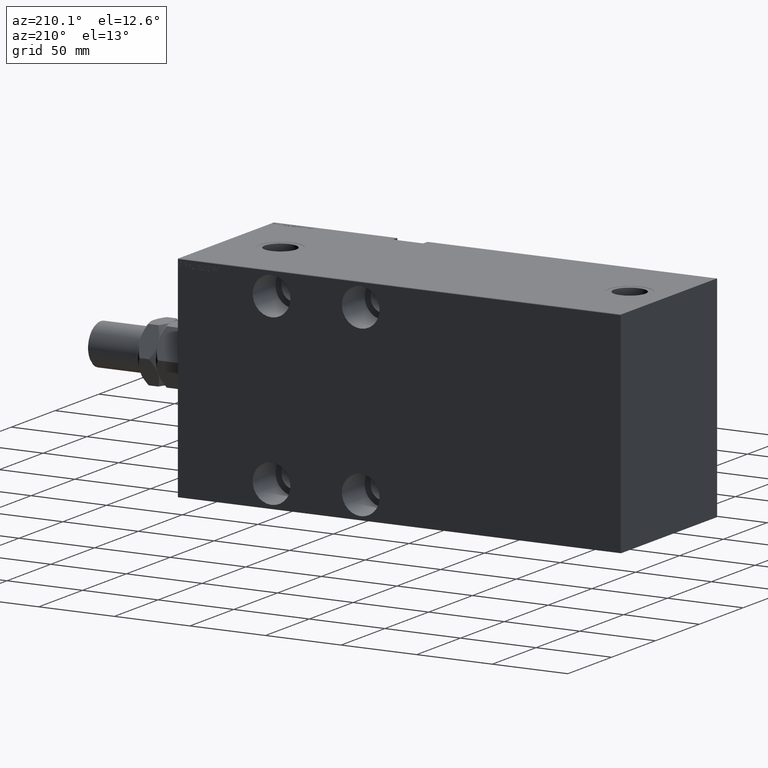
[diagram: clean part render]
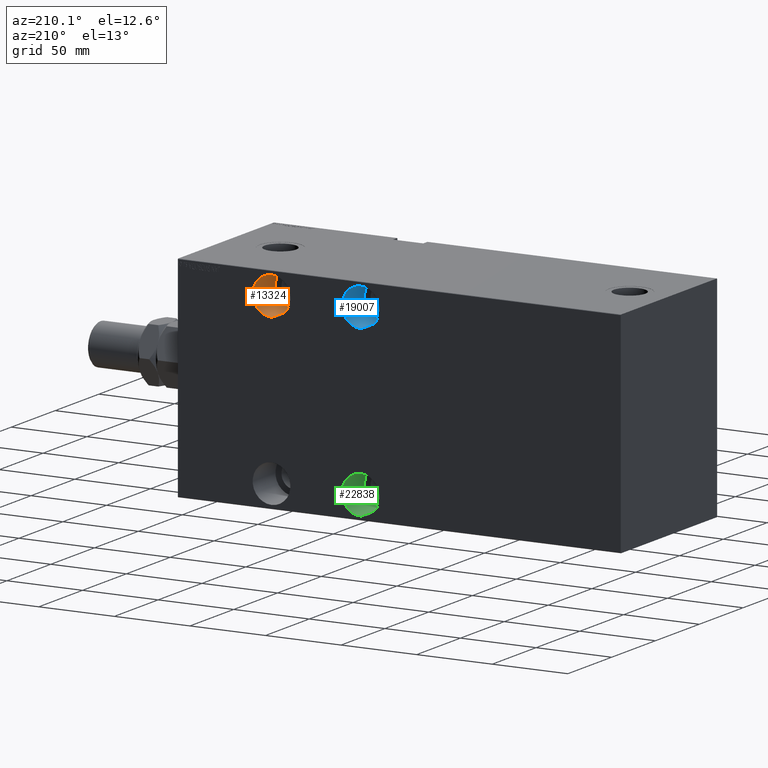
[diagram: same view with three faces highlighted in distinct colors, each labeled with its STEP entity id]
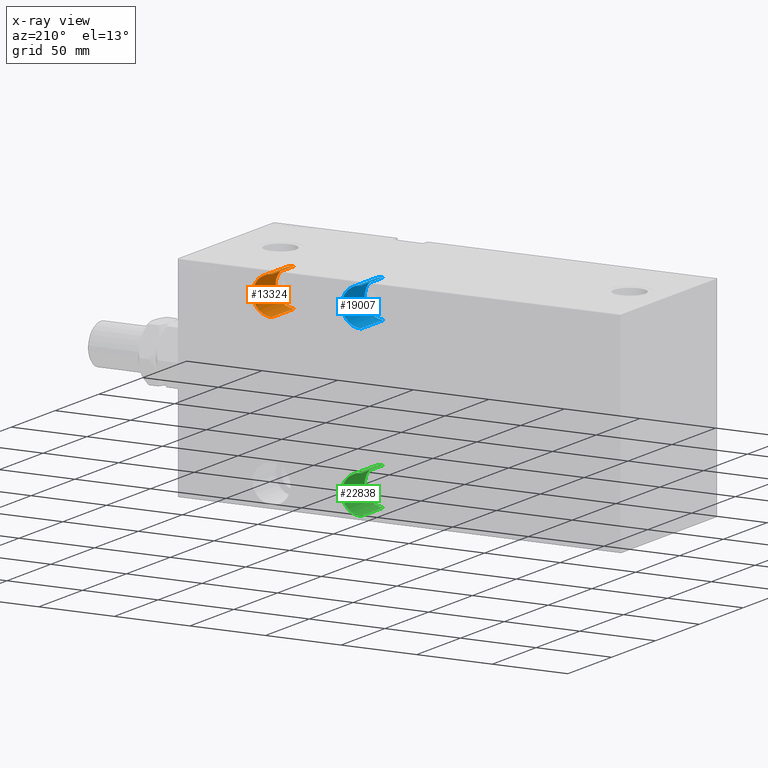
[diagram: x-ray of the same camera — body ghosted, the three highlighted faces saturated]
A machine part, auxiliary view with three faces highlighted in distinct colors.
The next image is the same camera in x-ray (body ghosted, the three faces saturated) — at least one of them is partly hidden behind the body in this view.
Their STEP definitions:

[orange] entity #13324 — the highlighted cylindrical surface (edge-blend (fillet) strip) has radius 12.5 mm, axis along (-0, 1, 0).
#470 = AXIS2_PLACEMENT_3D ( 'NONE', #31574, #34827, #42491 ) ;
#2971 = VERTEX_POINT ( 'NONE', #18669 ) ;
#4683 = ORIENTED_EDGE ( 'NONE', *, *, #36624, .F. ) ;
#5043 = VERTEX_POINT ( 'NONE', #12454 ) ;
#5191 = DIRECTION ( 'NONE',  ( -0.000000000000000000, -1.000000000000000000, -0.000000000000000000 ) ) ;
#5789 = ORIENTED_EDGE ( 'NONE', *, *, #35254, .T. ) ;
#6509 = DIRECTION ( 'NONE',  ( -0.000000000000000000, -1.000000000000000000, -0.000000000000000000 ) ) ;
#8818 = DIRECTION ( 'NONE',  ( 0.000000000000000000, -1.000000000000000000, 0.000000000000000000 ) ) ;
#11498 = VERTEX_POINT ( 'NONE', #43102 ) ;
#11910 = ORIENTED_EDGE ( 'NONE', *, *, #24061, .F. ) ;
#12454 = CARTESIAN_POINT ( 'NONE',  ( 62.00000000000001421, -28.99999999999999289, 42.50000000000000711 ) ) ;
#12504 = AXIS2_PLACEMENT_3D ( 'NONE', #44181, #8818, #16265 ) ;
#12857 = LINE ( 'NONE', #16115, #18529 ) ;
#13324 = ADVANCED_FACE ( 'NONE', ( #44595 ), #45051, .F. ) ;
#16115 = CARTESIAN_POINT ( 'NONE',  ( 62.00000000000001421, -28.99999999999999289, 67.50000000000001421 ) ) ;
#16265 = DIRECTION ( 'NONE',  ( 0.000000000000000000, 0.000000000000000000, -1.000000000000000000 ) ) ;
#17673 = CARTESIAN_POINT ( 'NONE',  ( 62.00000000000001421, -28.99999999999999289, 42.50000000000000711 ) ) ;
#18529 = VECTOR ( 'NONE', #5191, 1000.000000000000000 ) ;
#18669 = CARTESIAN_POINT ( 'NONE',  ( 62.00000000000001421, -28.99999999999999289, 67.50000000000001421 ) ) ;
#19884 = VERTEX_POINT ( 'NONE', #44073 ) ;
#21454 = CIRCLE ( 'NONE', #12504, 12.50000000000000355 ) ;
#24061 = EDGE_CURVE ( 'NONE', #2971, #5043, #35415, .T. ) ;
#25089 = EDGE_LOOP ( 'NONE', ( #11910, #5789, #35195, #4683 ) ) ;
#26734 = VECTOR ( 'NONE', #6509, 1000.000000000000000 ) ;
#29223 = EDGE_CURVE ( 'NONE', #19884, #11498, #21454, .T. ) ;
#31117 = CARTESIAN_POINT ( 'NONE',  ( 62.00000000000001421, -28.99999999999999289, 55.00000000000001421 ) ) ;
#31574 = CARTESIAN_POINT ( 'NONE',  ( 62.00000000000001421, -28.99999999999999289, 55.00000000000001421 ) ) ;
#31662 = LINE ( 'NONE', #17673, #26734 ) ;
#34827 = DIRECTION ( 'NONE',  ( 0.000000000000000000, -1.000000000000000000, 0.000000000000000000 ) ) ;
#35195 = ORIENTED_EDGE ( 'NONE', *, *, #29223, .T. ) ;
#35254 = EDGE_CURVE ( 'NONE', #2971, #19884, #12857, .T. ) ;
#35415 = CIRCLE ( 'NONE', #470, 12.50000000000000355 ) ;
#36624 = EDGE_CURVE ( 'NONE', #5043, #11498, #31662, .T. ) ;
#41107 = DIRECTION ( 'NONE',  ( 0.000000000000000000, 0.000000000000000000, -1.000000000000000000 ) ) ;
#41577 = DIRECTION ( 'NONE',  ( -0.000000000000000000, -1.000000000000000000, -0.000000000000000000 ) ) ;
#42491 = DIRECTION ( 'NONE',  ( 0.000000000000000000, 0.000000000000000000, -1.000000000000000000 ) ) ;
#43102 = CARTESIAN_POINT ( 'NONE',  ( 62.00000000000001421, -54.99999999999999289, 42.50000000000000711 ) ) ;
#44073 = CARTESIAN_POINT ( 'NONE',  ( 62.00000000000001421, -54.99999999999999289, 67.50000000000001421 ) ) ;
#44181 = CARTESIAN_POINT ( 'NONE',  ( 62.00000000000001421, -54.99999999999999289, 55.00000000000001421 ) ) ;
#44456 = AXIS2_PLACEMENT_3D ( 'NONE', #31117, #41577, #41107 ) ;
#44595 = FACE_OUTER_BOUND ( 'NONE', #25089, .T. ) ;
#45051 = CYLINDRICAL_SURFACE ( 'NONE', #44456, 12.50000000000000355 ) ;

[blue] entity #19007 — the highlighted cylindrical surface (edge-blend (fillet) strip) has radius 12.5 mm, axis along (-0, 1, 0).
#100 = DIRECTION ( 'NONE',  ( -0.000000000000000000, -1.000000000000000000, -0.000000000000000000 ) ) ;
#1129 = CARTESIAN_POINT ( 'NONE',  ( 121.0000000000000142, -28.99999999999999289, 55.00000000000000711 ) ) ;
#1254 = VERTEX_POINT ( 'NONE', #24832 ) ;
#2485 = CARTESIAN_POINT ( 'NONE',  ( 121.0000000000000142, -28.99999999999999289, 67.49999999999998579 ) ) ;
#4965 = LINE ( 'NONE', #39661, #16327 ) ;
#5338 = CARTESIAN_POINT ( 'NONE',  ( 121.0000000000000142, -54.99999999999999289, 55.00000000000000711 ) ) ;
#7932 = VERTEX_POINT ( 'NONE', #23724 ) ;
#9202 = LINE ( 'NONE', #2485, #33182 ) ;
#12081 = DIRECTION ( 'NONE',  ( 0.000000000000000000, -1.000000000000000000, 0.000000000000000000 ) ) ;
#12386 = ORIENTED_EDGE ( 'NONE', *, *, #37000, .F. ) ;
#12738 = EDGE_CURVE ( 'NONE', #7932, #20145, #34087, .T. ) ;
#14485 = DIRECTION ( 'NONE',  ( 0.000000000000000000, 0.000000000000000000, -1.000000000000000000 ) ) ;
#14549 = AXIS2_PLACEMENT_3D ( 'NONE', #14717, #100, #14485 ) ;
#14717 = CARTESIAN_POINT ( 'NONE',  ( 121.0000000000000142, -28.99999999999999289, 55.00000000000000711 ) ) ;
#15086 = DIRECTION ( 'NONE',  ( 0.000000000000000000, -1.000000000000000000, 0.000000000000000000 ) ) ;
#15949 = ORIENTED_EDGE ( 'NONE', *, *, #23957, .T. ) ;
#16327 = VECTOR ( 'NONE', #43143, 1000.000000000000000 ) ;
#16848 = CARTESIAN_POINT ( 'NONE',  ( 121.0000000000000142, -28.99999999999999289, 42.50000000000001421 ) ) ;
#19007 = ADVANCED_FACE ( 'NONE', ( #25200 ), #32418, .F. ) ;
#20145 = VERTEX_POINT ( 'NONE', #24983 ) ;
#22080 = AXIS2_PLACEMENT_3D ( 'NONE', #1129, #15086, #39766 ) ;
#23724 = CARTESIAN_POINT ( 'NONE',  ( 121.0000000000000142, -54.99999999999999289, 67.49999999999998579 ) ) ;
#23957 = EDGE_CURVE ( 'NONE', #1254, #7932, #9202, .T. ) ;
#24832 = CARTESIAN_POINT ( 'NONE',  ( 121.0000000000000142, -28.99999999999999289, 67.49999999999998579 ) ) ;
#24983 = CARTESIAN_POINT ( 'NONE',  ( 121.0000000000000142, -54.99999999999999289, 42.50000000000001421 ) ) ;
#25200 = FACE_OUTER_BOUND ( 'NONE', #34495, .T. ) ;
#25524 = EDGE_CURVE ( 'NONE', #1254, #39562, #32496, .T. ) ;
#26288 = DIRECTION ( 'NONE',  ( 0.000000000000000000, 0.000000000000000000, -1.000000000000000000 ) ) ;
#28905 = AXIS2_PLACEMENT_3D ( 'NONE', #5338, #12081, #26288 ) ;
#32418 = CYLINDRICAL_SURFACE ( 'NONE', #14549, 12.49999999999999112 ) ;
#32496 = CIRCLE ( 'NONE', #22080, 12.49999999999999112 ) ;
#33182 = VECTOR ( 'NONE', #44816, 1000.000000000000000 ) ;
#34087 = CIRCLE ( 'NONE', #28905, 12.49999999999999112 ) ;
#34495 = EDGE_LOOP ( 'NONE', ( #39287, #15949, #35188, #12386 ) ) ;
#35188 = ORIENTED_EDGE ( 'NONE', *, *, #12738, .T. ) ;
#37000 = EDGE_CURVE ( 'NONE', #39562, #20145, #4965, .T. ) ;
#39287 = ORIENTED_EDGE ( 'NONE', *, *, #25524, .F. ) ;
#39562 = VERTEX_POINT ( 'NONE', #16848 ) ;
#39661 = CARTESIAN_POINT ( 'NONE',  ( 121.0000000000000142, -28.99999999999999289, 42.50000000000001421 ) ) ;
#39766 = DIRECTION ( 'NONE',  ( 0.000000000000000000, 0.000000000000000000, -1.000000000000000000 ) ) ;
#43143 = DIRECTION ( 'NONE',  ( -0.000000000000000000, -1.000000000000000000, -0.000000000000000000 ) ) ;
#44816 = DIRECTION ( 'NONE',  ( -0.000000000000000000, -1.000000000000000000, -0.000000000000000000 ) ) ;

[green] entity #22838 — the highlighted cylindrical surface (edge-blend (fillet) strip) has radius 12.5 mm, axis along (-0, 1, 0).
#1228 = DIRECTION ( 'NONE',  ( -0.000000000000000000, -1.000000000000000000, -0.000000000000000000 ) ) ;
#1625 = ORIENTED_EDGE ( 'NONE', *, *, #21345, .T. ) ;
#1802 = DIRECTION ( 'NONE',  ( 0.000000000000000000, -1.000000000000000000, 0.000000000000000000 ) ) ;
#2009 = EDGE_LOOP ( 'NONE', ( #2403, #1625, #34965, #21250 ) ) ;
#2403 = ORIENTED_EDGE ( 'NONE', *, *, #40086, .F. ) ;
#3097 = CARTESIAN_POINT ( 'NONE',  ( 121.0000000000000000, -54.99999999999999289, -67.50000000000000000 ) ) ;
#3384 = CARTESIAN_POINT ( 'NONE',  ( 121.0000000000000000, -28.99999999999999289, -54.99999999999999289 ) ) ;
#3982 = LINE ( 'NONE', #18166, #33849 ) ;
#4296 = DIRECTION ( 'NONE',  ( -0.000000000000000000, -1.000000000000000000, -0.000000000000000000 ) ) ;
#6821 = CARTESIAN_POINT ( 'NONE',  ( 121.0000000000000000, -28.99999999999999289, -67.50000000000000000 ) ) ;
#7070 = VECTOR ( 'NONE', #1228, 1000.000000000000000 ) ;
#7093 = FACE_OUTER_BOUND ( 'NONE', #2009, .T. ) ;
#8861 = VERTEX_POINT ( 'NONE', #27636 ) ;
#10871 = DIRECTION ( 'NONE',  ( 0.000000000000000000, 0.000000000000000000, -1.000000000000000000 ) ) ;
#11569 = AXIS2_PLACEMENT_3D ( 'NONE', #3384, #4296, #18497 ) ;
#15524 = DIRECTION ( 'NONE',  ( 0.000000000000000000, 0.000000000000000000, -1.000000000000000000 ) ) ;
#16397 = AXIS2_PLACEMENT_3D ( 'NONE', #35333, #39290, #10871 ) ;
#16942 = EDGE_CURVE ( 'NONE', #23242, #27252, #33108, .T. ) ;
#18166 = CARTESIAN_POINT ( 'NONE',  ( 121.0000000000000000, -28.99999999999999289, -42.49999999999998579 ) ) ;
#18497 = DIRECTION ( 'NONE',  ( 0.000000000000000000, 0.000000000000000000, -1.000000000000000000 ) ) ;
#21250 = ORIENTED_EDGE ( 'NONE', *, *, #16942, .F. ) ;
#21345 = EDGE_CURVE ( 'NONE', #42266, #8861, #3982, .T. ) ;
#22838 = ADVANCED_FACE ( 'NONE', ( #7093 ), #28980, .F. ) ;
#23242 = VERTEX_POINT ( 'NONE', #6821 ) ;
#26015 = CARTESIAN_POINT ( 'NONE',  ( 121.0000000000000000, -28.99999999999999289, -54.99999999999999289 ) ) ;
#26093 = AXIS2_PLACEMENT_3D ( 'NONE', #26015, #1802, #15524 ) ;
#27252 = VERTEX_POINT ( 'NONE', #3097 ) ;
#27636 = CARTESIAN_POINT ( 'NONE',  ( 121.0000000000000000, -54.99999999999999289, -42.49999999999998579 ) ) ;
#28980 = CYLINDRICAL_SURFACE ( 'NONE', #11569, 12.50000000000001066 ) ;
#32376 = DIRECTION ( 'NONE',  ( -0.000000000000000000, -1.000000000000000000, -0.000000000000000000 ) ) ;
#33108 = LINE ( 'NONE', #36816, #7070 ) ;
#33849 = VECTOR ( 'NONE', #32376, 1000.000000000000000 ) ;
#34965 = ORIENTED_EDGE ( 'NONE', *, *, #39243, .T. ) ;
#35333 = CARTESIAN_POINT ( 'NONE',  ( 121.0000000000000000, -54.99999999999999289, -54.99999999999999289 ) ) ;
#36523 = CARTESIAN_POINT ( 'NONE',  ( 121.0000000000000000, -28.99999999999999289, -42.49999999999998579 ) ) ;
#36816 = CARTESIAN_POINT ( 'NONE',  ( 121.0000000000000000, -28.99999999999999289, -67.50000000000000000 ) ) ;
#39243 = EDGE_CURVE ( 'NONE', #8861, #27252, #40184, .T. ) ;
#39290 = DIRECTION ( 'NONE',  ( 0.000000000000000000, -1.000000000000000000, 0.000000000000000000 ) ) ;
#40086 = EDGE_CURVE ( 'NONE', #42266, #23242, #40949, .T. ) ;
#40184 = CIRCLE ( 'NONE', #16397, 12.50000000000001066 ) ;
#40949 = CIRCLE ( 'NONE', #26093, 12.50000000000001066 ) ;
#42266 = VERTEX_POINT ( 'NONE', #36523 ) ;